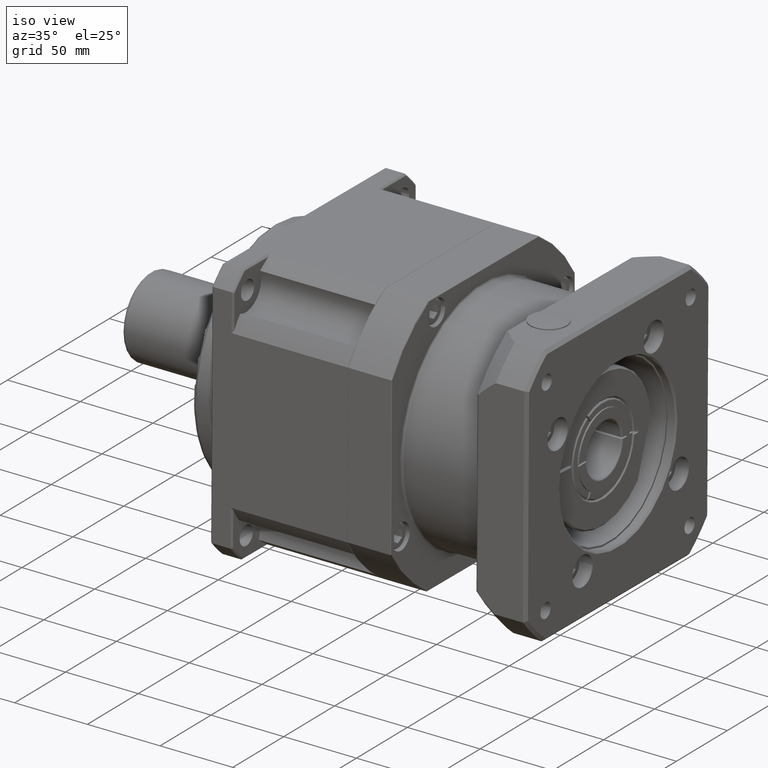
[diagram: clean part render]
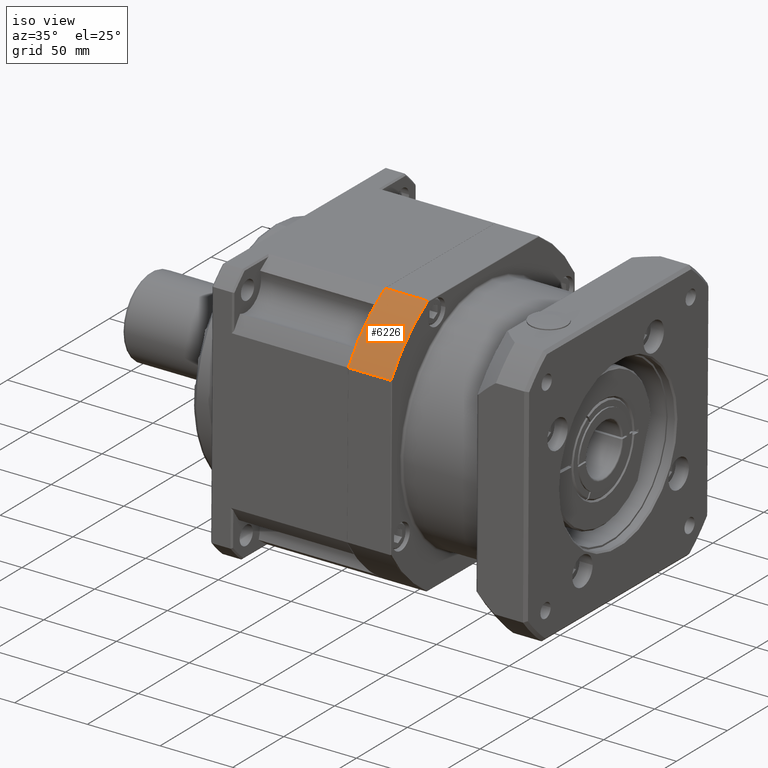
[diagram: same view with one face highlighted and labeled with its STEP entity id]
A machine part, iso view. The second image highlights one B-rep face of the part: STEP entity #6226.
In plain terms, the highlighted cylindrical surface (partial cylindrical patch) has radius 105 mm, axis along (-1, -0, 0).
Its self-contained STEP definition (entity closure, byte-faithful):
#396=LINE('',#10365,#700);
#397=LINE('',#10371,#701);
#700=VECTOR('',#8283,29.4);
#701=VECTOR('',#8290,29.4);
#1502=FACE_OUTER_BOUND('',#2002,.T.);
#2002=EDGE_LOOP('',(#4970,#4971,#4972,#4973));
#2498=CIRCLE('',#6867,105.);
#2499=CIRCLE('',#6868,105.);
#2990=VERTEX_POINT('',#10359);
#2992=VERTEX_POINT('',#10363);
#2993=VERTEX_POINT('',#10367);
#2994=VERTEX_POINT('',#10369);
#3705=EDGE_CURVE('',#2992,#2990,#396,.T.);
#3706=EDGE_CURVE('',#2990,#2993,#2498,.T.);
#3707=EDGE_CURVE('',#2994,#2992,#2499,.T.);
#3708=EDGE_CURVE('',#2993,#2994,#397,.T.);
#4970=ORIENTED_EDGE('',*,*,#3706,.F.);
#4971=ORIENTED_EDGE('',*,*,#3705,.F.);
#4972=ORIENTED_EDGE('',*,*,#3707,.F.);
#4973=ORIENTED_EDGE('',*,*,#3708,.F.);
#5656=CYLINDRICAL_SURFACE('',#6866,105.);
#6226=ADVANCED_FACE('',(#1502),#5656,.T.);
#6866=AXIS2_PLACEMENT_3D('',#10366,#8284,#8285);
#6867=AXIS2_PLACEMENT_3D('',#10368,#8286,#8287);
#6868=AXIS2_PLACEMENT_3D('',#10370,#8288,#8289);
#8283=DIRECTION('',(-1.,-3.19739126628658E-17,3.41308894495248E-16));
#8284=DIRECTION('center_axis',(-1.,-3.19739126628658E-17,3.41308894495248E-16));
#8285=DIRECTION('ref_axis',(3.41027749429785E-16,0.00841499871866982,0.999964593271464));
#8286=DIRECTION('center_axis',(-1.,-3.19739126628658E-17,3.41308894495248E-16));
#8287=DIRECTION('ref_axis',(3.41027749429785E-16,0.00841499871866982,0.999964593271464));
#8288=DIRECTION('center_axis',(1.,3.19739126628658E-17,-3.41308894495248E-16));
#8289=DIRECTION('ref_axis',(2.6578209537188E-16,-0.701131442191053,0.713032047506348));
#8290=DIRECTION('',(1.,3.19739126628658E-17,-3.41308894495248E-16));
#10359=CARTESIAN_POINT('',(-65.5970715127766,-242.978118142407,104.031230911442));
#10363=CARTESIAN_POINT('',(-36.1970715127766,-242.978118142407,104.031230911442));
#10365=CARTESIAN_POINT('',(-35.6970715127766,-242.978118142407,104.031230911442));
#10366=CARTESIAN_POINT('Origin',(-35.6970715127766,-153.436415388422,49.1925268064302));
#10367=CARTESIAN_POINT('',(-65.5970715127766,-206.760419724073,139.644450841309));
#10368=CARTESIAN_POINT('Origin',(-65.5970715127766,-153.436415388422,49.1925268064302));
#10369=CARTESIAN_POINT('',(-36.1970715127765,-206.760419724073,139.644450841309));
#10370=CARTESIAN_POINT('Origin',(-36.1970715127766,-153.436415388422,49.1925268064302));
#10371=CARTESIAN_POINT('',(-35.6970715127766,-206.760419724073,139.644450841309));